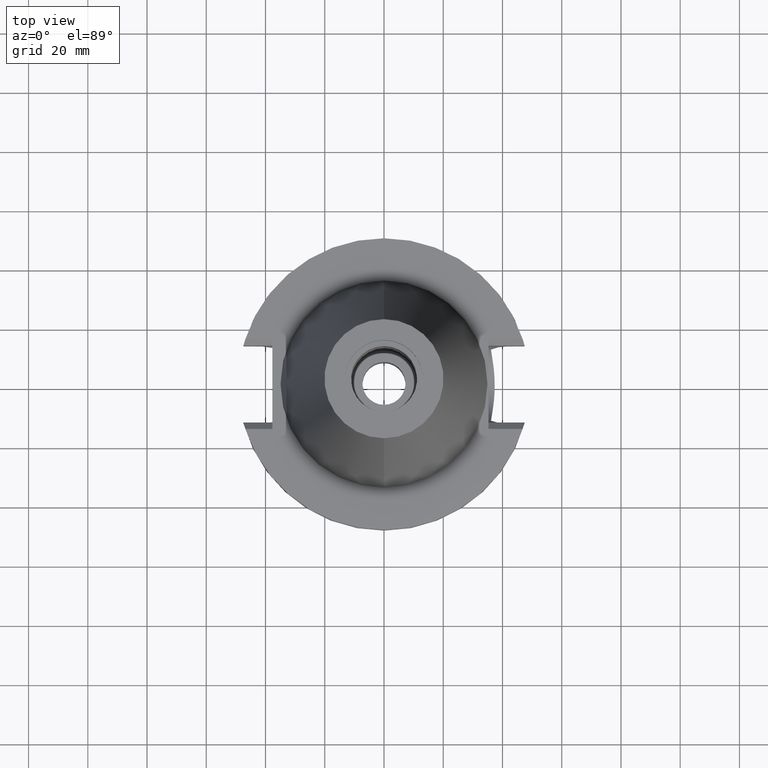
[diagram: clean part render]
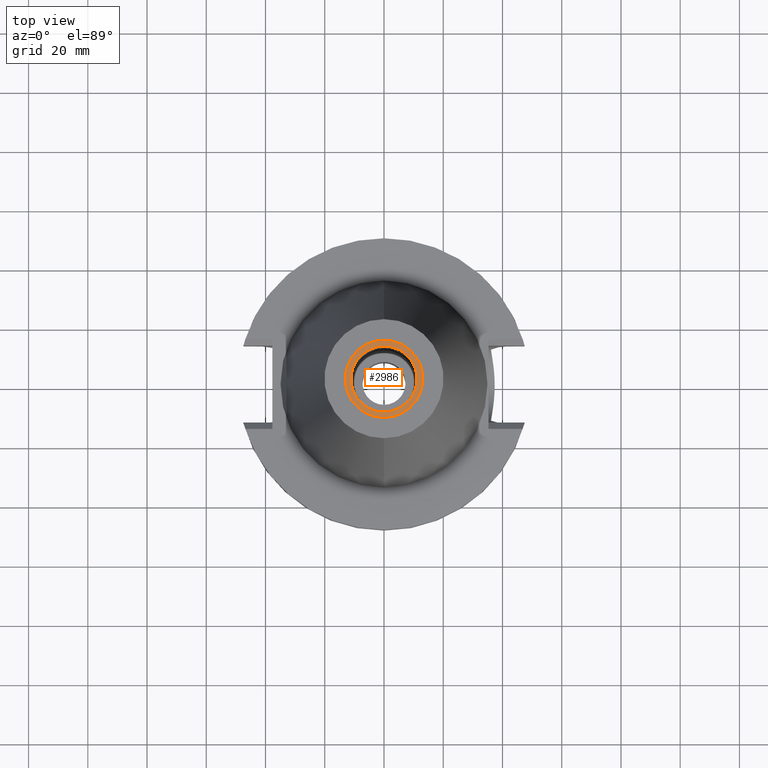
[diagram: same view with one face highlighted and labeled with its STEP entity id]
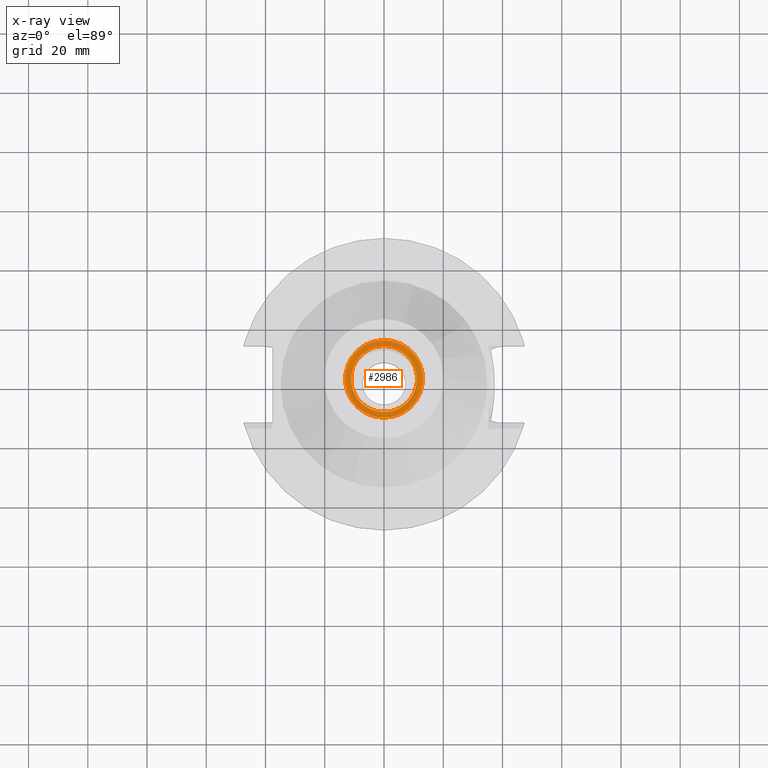
[diagram: x-ray of the same camera — body ghosted, the highlighted face saturated]
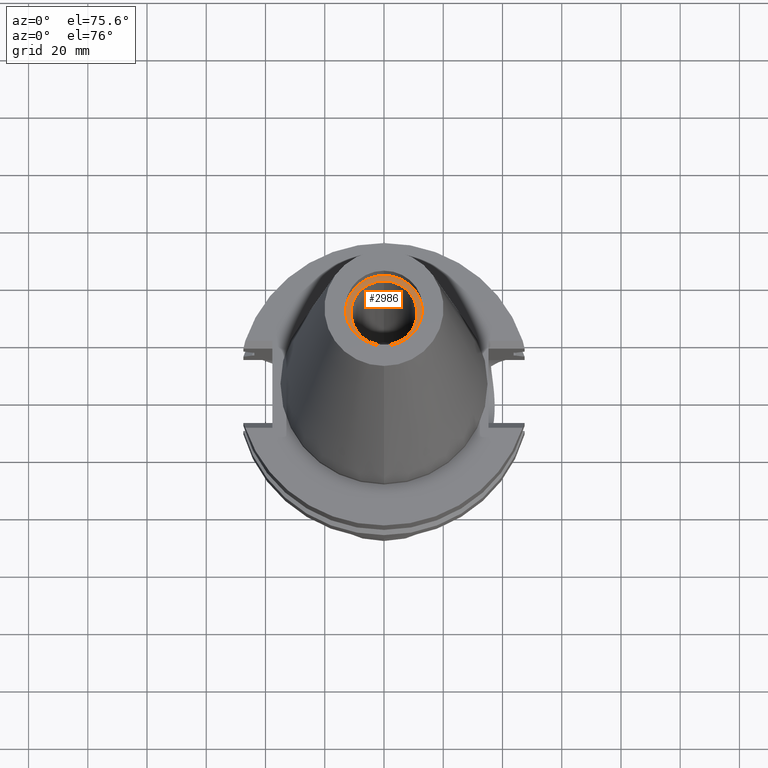
[diagram: same view with one face highlighted and labeled with its STEP entity id]
A machine part, top view. The second image highlights one B-rep face of the part: STEP entity #2986.
The next image is the same camera in x-ray: the body ghosted, the highlighted face saturated — about 0% of this face is hidden behind the body in this view.
A second angle (auxiliary view) of the same face is appended — the face is thin or edge-on in the first view.
In plain terms, the highlighted planar face has unit normal (0, 0, -1).
Its self-contained STEP definition (entity closure, byte-faithful):
#1525=CARTESIAN_POINT('',(0.E0,1.370134838886E-14,9.525E1));
#1526=DIRECTION('',(0.E0,0.E0,-1.E0));
#1527=DIRECTION('',(0.E0,-1.E0,0.E0));
#1528=AXIS2_PLACEMENT_3D('',#1525,#1526,#1527);
#1533=CARTESIAN_POINT('',(0.E0,1.370134838886E-14,9.525E1));
#1534=DIRECTION('',(0.E0,0.E0,-1.E0));
#1535=DIRECTION('',(0.E0,1.E0,0.E0));
#1536=AXIS2_PLACEMENT_3D('',#1533,#1534,#1535);
#1541=CARTESIAN_POINT('',(0.E0,1.370134838886E-14,9.525E1));
#1542=DIRECTION('',(0.E0,0.E0,1.E0));
#1543=DIRECTION('',(0.E0,-1.E0,0.E0));
#1544=AXIS2_PLACEMENT_3D('',#1541,#1542,#1543);
#1549=CARTESIAN_POINT('',(0.E0,1.370134838886E-14,9.525E1));
#1550=DIRECTION('',(0.E0,0.E0,1.E0));
#1551=DIRECTION('',(0.E0,1.E0,0.E0));
#1552=AXIS2_PLACEMENT_3D('',#1549,#1550,#1551);
#1579=CARTESIAN_POINT('',(0.E0,1.3115E1,9.525E1));
#1580=VERTEX_POINT('',#1579);
#1581=CARTESIAN_POINT('',(0.E0,-1.3115E1,9.525E1));
#1582=VERTEX_POINT('',#1581);
#1583=CARTESIAN_POINT('',(0.E0,-1.115E1,9.525E1));
#1584=CARTESIAN_POINT('',(0.E0,1.115E1,9.525E1));
#1585=VERTEX_POINT('',#1583);
#1586=VERTEX_POINT('',#1584);
#2971=CARTESIAN_POINT('',(0.E0,1.166476076188E-14,9.525E1));
#2972=DIRECTION('',(0.E0,0.E0,-1.E0));
#2973=DIRECTION('',(0.E0,-1.E0,0.E0));
#2974=AXIS2_PLACEMENT_3D('',#2971,#2972,#2973);
#2975=PLANE('',#2974);
#2977=ORIENTED_EDGE('',*,*,#2976,.T.);
#2979=ORIENTED_EDGE('',*,*,#2978,.T.);
#2980=EDGE_LOOP('',(#2977,#2979));
#2981=FACE_OUTER_BOUND('',#2980,.F.);
#2982=ORIENTED_EDGE('',*,*,#2964,.T.);
#2983=ORIENTED_EDGE('',*,*,#2953,.T.);
#2984=EDGE_LOOP('',(#2982,#2983));
#2985=FACE_BOUND('',#2984,.F.);
#1529=CIRCLE('',#1528,1.3115E1);
#1537=CIRCLE('',#1536,1.3115E1);
#1545=CIRCLE('',#1544,1.115E1);
#1553=CIRCLE('',#1552,1.115E1);
#2953=EDGE_CURVE('',#1586,#1585,#1553,.T.);
#2964=EDGE_CURVE('',#1585,#1586,#1545,.T.);
#2976=EDGE_CURVE('',#1582,#1580,#1529,.T.);
#2978=EDGE_CURVE('',#1580,#1582,#1537,.T.);
#2986=ADVANCED_FACE('',(#2981,#2985),#2975,.F.);